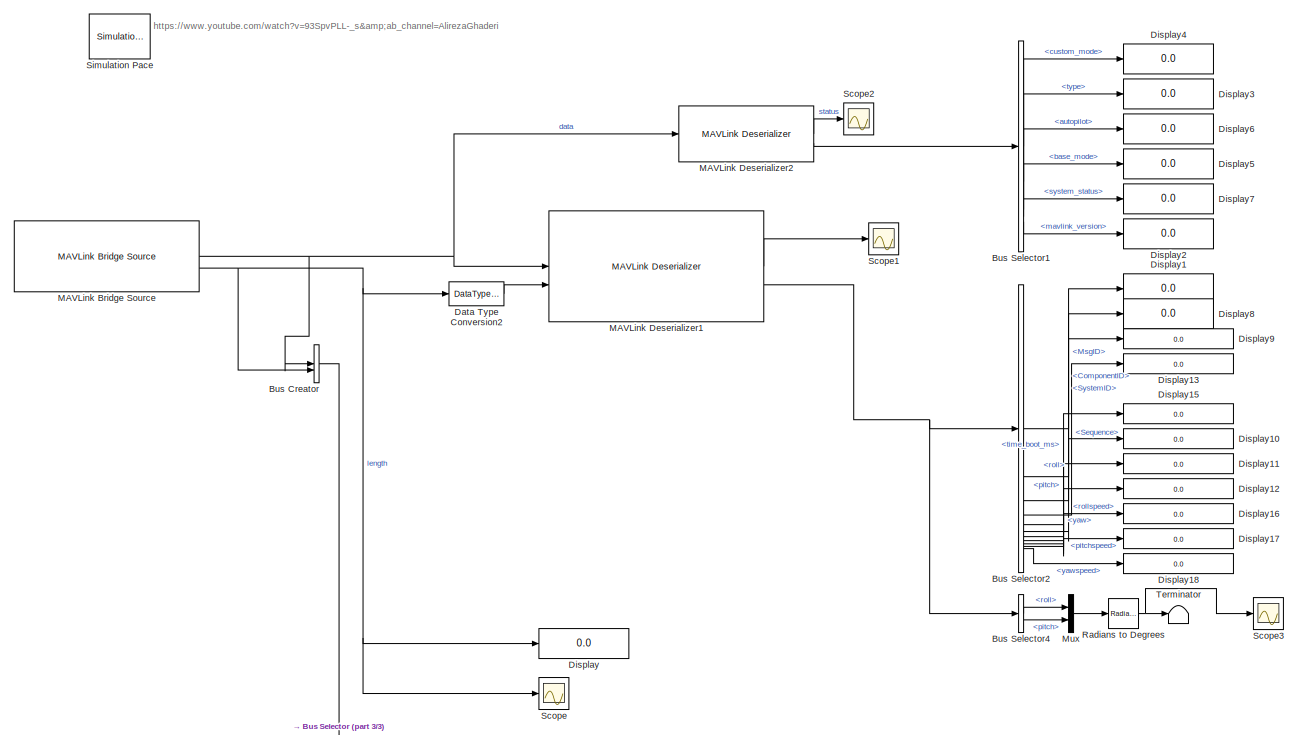
[diagram: root canvas - part 1/3, full width, middle band]
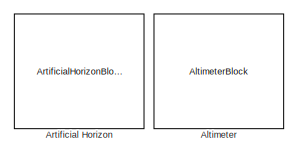
[diagram: root canvas - part 2/3, top right region]
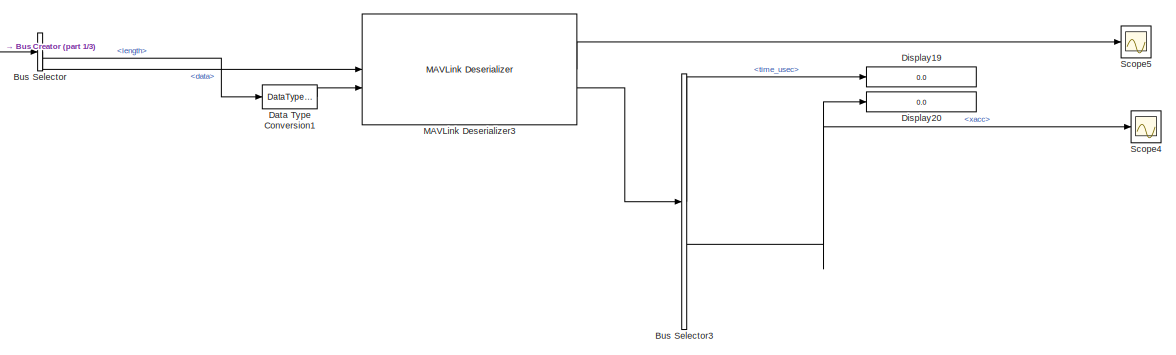
[diagram: root canvas - part 3/3, bottom center region]
MODEL slx_02a4c61fe6fc
KIND model
CONFIG AbsTol = auto
CONFIG EnableMultiTasking = off
CONFIG FixedStep = auto
CONFIG MaxStep = auto
CONFIG MinStep = auto
CONFIG RelTol = 1e-3
CONFIG SampleTimeConstraint = Unconstrained
CONFIG SolverName = VariableStepAuto
CONFIG StartTime = 0.0
CONFIG StopTime = 100
BLOCK [AltimeterBlock] Altimeter
BLOCK [ArtificialHorizonBlock] Artificial Horizon
BLOCK [BusCreator] Bus Creator
  DisplayOption = bar
  InheritFromInputs = on
  Inputs = 2
BLOCK [BusSelector] Bus Selector
  OutputSignals = data,length
BLOCK [BusSelector] Bus Selector1
  OutputSignals = Payload.custom_mode,Payload.type,Payload.autopilot,Payload.base_mode,Payload.system_status,Payload.mavlink_version
BLOCK [BusSelector] Bus Selector2
  OutputSignals = MsgID,SystemID,ComponentID,Sequence,Payload.time_boot_ms,Payload.roll,Payload.pitch,Payload.yaw,Payload.rollspeed,Payload.pitchspeed,Payload.yawspeed
BLOCK [BusSelector] Bus Selector3
  OutputSignals = Payload.time_usec,Payload.xacc,Payload.yacc,Payload.zacc,Payload.xgyro,Payload.ygyro,Payload.zgyro,Payload.xmag,Payload.ymag,Payload.zmag,Payload.temperature
BLOCK [BusSelector] Bus Selector4
  OutputSignals = Payload.roll,Payload.pitch
BLOCK [DataTypeConversion] Data Type Conversion1
  RndMeth = Floor
  SaturateOnIntegerOverflow = off
BLOCK [DataTypeConversion] Data Type Conversion2
  RndMeth = Floor
  SaturateOnIntegerOverflow = off
BLOCK [Display] Display
  Decimation = 1
BLOCK [Display] Display1
  Decimation = 1
BLOCK [Display] Display10
  Decimation = 1
BLOCK [Display] Display11
  Decimation = 1
BLOCK [Display] Display12
  Decimation = 1
BLOCK [Display] Display13
  Decimation = 1
BLOCK [Display] Display15
  Decimation = 1
BLOCK [Display] Display16
  Decimation = 1
BLOCK [Display] Display17
  Decimation = 1
BLOCK [Display] Display18
  Decimation = 1
BLOCK [Display] Display19
  Decimation = 1
BLOCK [Display] Display2
  Decimation = 1
BLOCK [Display] Display20
  Decimation = 1
BLOCK [Display] Display3
  Decimation = 1
BLOCK [Display] Display4
  Decimation = 1
BLOCK [Display] Display5
  Decimation = 1
BLOCK [Display] Display6
  Decimation = 1
BLOCK [Display] Display7
  Decimation = 1
BLOCK [Display] Display8
  Decimation = 1
BLOCK [Display] Display9
  Decimation = 1
BLOCK [Reference] MAVLink Bridge Source  REF=px4MAVLinkBridgelib/MAVLink Bridge Source
  SourceBlock = px4MAVLinkBridgelib/MAVLink Bridge Source
  SourceType = px4.internal.block.MAVLinkSource
BLOCK [Reference] MAVLink Deserializer1  REF=uavmavlinklib/MAVLink Deserializer
  SourceBlock = uavmavlinklib/MAVLink Deserializer
  SourceType = MAVLink Deserializer
BLOCK [Reference] MAVLink Deserializer2  REF=uavmavlinklib/MAVLink Deserializer
  SourceBlock = uavmavlinklib/MAVLink Deserializer
  SourceType = MAVLink Deserializer
BLOCK [Reference] MAVLink Deserializer3  REF=uavmavlinklib/MAVLink Deserializer
  SourceBlock = uavmavlinklib/MAVLink Deserializer
  SourceType = MAVLink Deserializer
BLOCK [Mux] Mux
  DisplayOption = bar
  Inputs = 2
BLOCK [Reference] Radians to Degrees  REF=simulink_extras/Transformations/Radians
to Degrees
  SourceBlock = simulink_extras/Transformations/Radians\nto Degrees
  SourceType = RadiansToDegrees
BLOCK [Scope] Scope
  Floating = off
  NumInputPorts = 1
  ScopeSpecificationString = Simulink.scopes.TimeScopeBlockCfg('CurrentConfiguration', extmgr.ConfigurationSet(extmgr.Configuration('Core','General UI',true),extmgr.Configuration('Core','Source UI',true),extmgr.Configuration('Sources','WiredSimulink',true),extmgr.Configuration('Visuals','Time Domain',true,'SerializedDisplays',{struct('MinYLimReal','-14.375','MaxYLimReal','105.02122','YLabelReal','','MinYLimMag','0.00000','Max...<+1486ch>
BLOCK [Scope] Scope1
  Floating = off
  NumInputPorts = 1
  ScopeSpecificationString = Simulink.scopes.TimeScopeBlockCfg('CurrentConfiguration', extmgr.ConfigurationSet(extmgr.Configuration('Core','General UI',true),extmgr.Configuration('Core','Source UI',true),extmgr.Configuration('Sources','WiredSimulink',true,'DataLoggingVariableName','ScopeData1'),extmgr.Configuration('Visuals','Time Domain',true,'SerializedDisplays',{struct('MinYLimReal','-0.125','MaxYLimReal','1.125','YLabelRe...<+1512ch>
BLOCK [Scope] Scope2
  Floating = off
  NumInputPorts = 1
  ScopeSpecificationString = Simulink.scopes.TimeScopeBlockCfg('CurrentConfiguration', extmgr.ConfigurationSet(extmgr.Configuration('Core','General UI',true),extmgr.Configuration('Core','Source UI',true),extmgr.Configuration('Sources','WiredSimulink',true,'DataLoggingVariableName','ScopeData2'),extmgr.Configuration('Visuals','Time Domain',true,'SerializedDisplays',{struct('MinYLimReal','-0.125','MaxYLimReal','1.125','YLabelRe...<+1490ch>
BLOCK [Scope] Scope3
  Floating = off
  NumInputPorts = 1
  ScopeSpecificationString = Simulink.scopes.TimeScopeBlockCfg('CurrentConfiguration', extmgr.ConfigurationSet(extmgr.Configuration('Core','General UI',true),extmgr.Configuration('Core','Source UI',true),extmgr.Configuration('Sources','WiredSimulink',true,'DataLoggingVariableName','ScopeData1'),extmgr.Configuration('Visuals','Time Domain',true,'SerializedDisplays',{struct('MinYLimReal','-72.86211','MaxYLimReal','76.95253','YL...<+1568ch>
BLOCK [Scope] Scope4
  Floating = off
  NumInputPorts = 1
  ScopeSpecificationString = Simulink.scopes.TimeScopeBlockCfg('CurrentConfiguration', extmgr.ConfigurationSet(extmgr.Configuration('Core','General UI',true),extmgr.Configuration('Core','Source UI',true),extmgr.Configuration('Sources','WiredSimulink',true,'DataLoggingVariableName','ScopeData2'),extmgr.Configuration('Visuals','Time Domain',true,'SerializedDisplays',{struct('MinYLimReal','-304.25','MaxYLimReal','428.25','YLabel...<+1547ch>
BLOCK [Scope] Scope5
  Floating = off
  NumInputPorts = 1
  ScopeSpecificationString = Simulink.scopes.TimeScopeBlockCfg('CurrentConfiguration', extmgr.ConfigurationSet(extmgr.Configuration('Core','General UI',true),extmgr.Configuration('Core','Source UI',true),extmgr.Configuration('Sources','WiredSimulink',true,'DataLoggingVariableName','ScopeData3'),extmgr.Configuration('Visuals','Time Domain',true,'SerializedDisplays',{struct('MinYLimReal','-0.125','MaxYLimReal','1.125','YLabelRe...<+1535ch>
BLOCK [Reference] Simulation Pace  REF=aerolibanimutils/Simulation Pace
  AttributesFormatString = %<SleepMode>\n%<SimulationPace> sec/sec
  SourceBlock = aerolibanimutils/Simulation Pace
  SourceType = Simulation Pace
BLOCK [Terminator] Terminator
ANNOTATION (root): https://www.youtube.com/watch?v=93SpvPLL-_s&ab_channel=AlirezaGhaderi
LINE Bus Creator:1 -> Bus Selector:1
LINE Bus Selector1:1 -> Display4:1
LINE Bus Selector1:2 -> Display3:1
LINE Bus Selector1:3 -> Display6:1
LINE Bus Selector1:4 -> Display5:1
LINE Bus Selector1:5 -> Display7:1
LINE Bus Selector1:6 -> Display2:1
LINE Bus Selector2:1 -> Display1:1
LINE Bus Selector2:10 -> Display17:1
LINE Bus Selector2:11 -> Display18:1
LINE Bus Selector2:2 -> Display8:1
LINE Bus Selector2:3 -> Display9:1
LINE Bus Selector2:4 -> Display13:1
LINE Bus Selector2:5 -> Display15:1
LINE Bus Selector2:6 -> Display10:1
LINE Bus Selector2:7 -> Display11:1
LINE Bus Selector2:8 -> Display12:1
LINE Bus Selector2:9 -> Display16:1
LINE Bus Selector3:1 -> Display19:1
NET Bus Selector3:2 -> Display20:1, Scope4:1
LINE Bus Selector4:1 -> Mux:1
LINE Bus Selector4:2 -> Mux:2
LINE Bus Selector:1 -> MAVLink Deserializer3:1
LINE Bus Selector:2 -> Data Type Conversion1:1
LINE Data Type Conversion1:1 -> MAVLink Deserializer3:2
LINE Data Type Conversion2:1 -> MAVLink Deserializer1:2
NET MAVLink Bridge Source:1 -> Bus Creator:1, MAVLink Deserializer1:1, MAVLink Deserializer2:1
NET MAVLink Bridge Source:2 -> Bus Creator:2, Data Type Conversion2:1, Display:1, Scope:1
LINE MAVLink Deserializer1:1 -> Scope1:1
NET MAVLink Deserializer1:2 -> Bus Selector2:1, Bus Selector4:1
LINE MAVLink Deserializer2:1 -> Scope2:1
LINE MAVLink Deserializer2:2 -> Bus Selector1:1
LINE MAVLink Deserializer3:1 -> Scope5:1
LINE MAVLink Deserializer3:2 -> Bus Selector3:1
LINE Mux:1 -> Radians to Degrees:1
NET Radians to Degrees:1 -> Scope3:1, Terminator:1
note: NET lines group one-source signal fan-out (src -> all destinations, sorted); 1:1 wires keep LINE
